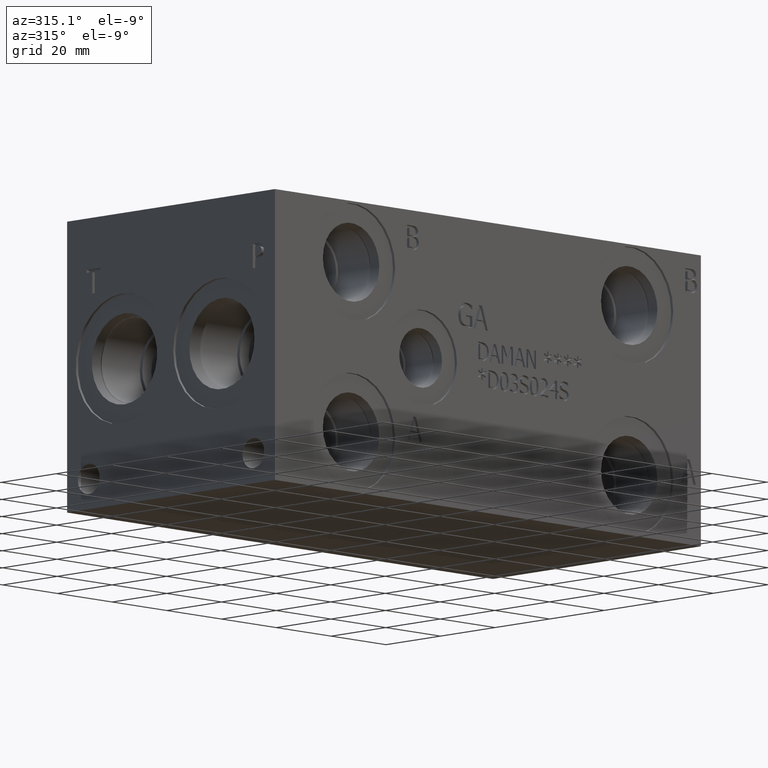
[diagram: clean part render]
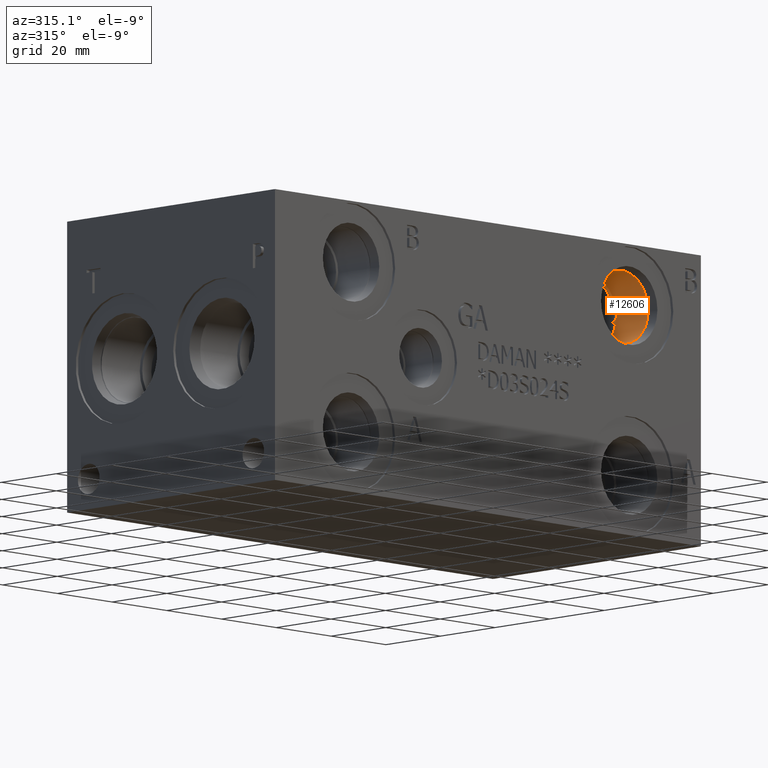
[diagram: same view with one face highlighted and labeled with its STEP entity id]
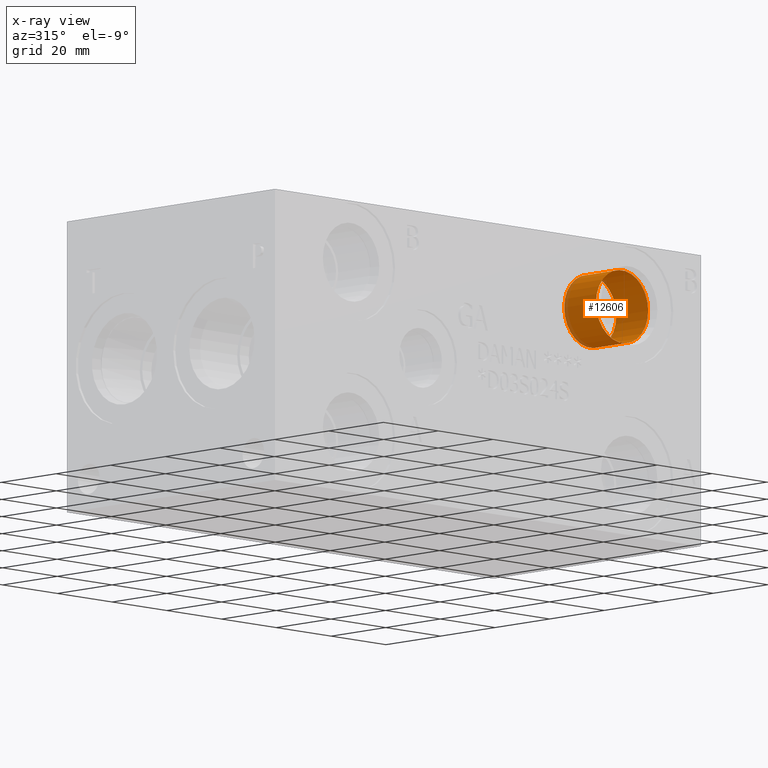
[diagram: x-ray of the same camera — body ghosted, the highlighted face saturated]
A machine part, auxiliary view. The second image highlights one B-rep face of the part: STEP entity #12606.
The next image is the same camera in x-ray: the body ghosted, the highlighted face saturated — about 6% of this face is hidden behind the body in this view.
In plain terms, the highlighted cylindrical surface (bore or boss wall) has radius 9.525 mm, axis along (0, -1, 0).
Its self-contained STEP definition (entity closure, byte-faithful):
#52=CYLINDRICAL_SURFACE('',#13289,9.525);
#313=CIRCLE('',#13266,9.525);
#325=CIRCLE('',#13286,9.525);
#326=CIRCLE('',#13287,9.525);
#1601=FACE_OUTER_BOUND('',#2329,.T.);
#2329=EDGE_LOOP('',(#10723,#10724,#10725,#10726,#10727));
#3525=LINE('',#21518,#4665);
#4665=VECTOR('',#15724,9.525);
#5795=VERTEX_POINT('',#21468);
#5810=VERTEX_POINT('',#21511);
#5811=VERTEX_POINT('',#21512);
#7482=EDGE_CURVE('',#5795,#5795,#313,.T.);
#7501=EDGE_CURVE('',#5810,#5811,#325,.T.);
#7502=EDGE_CURVE('',#5811,#5810,#326,.T.);
#7504=EDGE_CURVE('',#5795,#5811,#3525,.T.);
#10723=ORIENTED_EDGE('',*,*,#7482,.T.);
#10724=ORIENTED_EDGE('',*,*,#7504,.T.);
#10725=ORIENTED_EDGE('',*,*,#7501,.F.);
#10726=ORIENTED_EDGE('',*,*,#7502,.F.);
#10727=ORIENTED_EDGE('',*,*,#7504,.F.);
#12606=ADVANCED_FACE('',(#1601),#52,.F.);
#13266=AXIS2_PLACEMENT_3D('',#21470,#15669,#15670);
#13286=AXIS2_PLACEMENT_3D('',#21513,#15716,#15717);
#13287=AXIS2_PLACEMENT_3D('',#21514,#15718,#15719);
#13289=AXIS2_PLACEMENT_3D('',#21517,#15722,#15723);
#15669=DIRECTION('center_axis',(0.,-1.,0.));
#15670=DIRECTION('ref_axis',(1.,0.,0.));
#15716=DIRECTION('center_axis',(0.,-1.,0.));
#15717=DIRECTION('ref_axis',(1.,0.,0.));
#15718=DIRECTION('center_axis',(0.,-1.,0.));
#15719=DIRECTION('ref_axis',(1.,0.,0.));
#15722=DIRECTION('center_axis',(0.,-1.,0.));
#15723=DIRECTION('ref_axis',(1.,0.,0.));
#15724=DIRECTION('',(0.,1.,0.));
#21468=CARTESIAN_POINT('',(120.65,3.4036,60.325));
#21470=CARTESIAN_POINT('Origin',(130.175,3.4036,60.325));
#21511=CARTESIAN_POINT('',(139.7,15.0622,60.325));
#21512=CARTESIAN_POINT('',(120.65,15.0622,60.325));
#21513=CARTESIAN_POINT('Origin',(130.175,15.0622,60.325));
#21514=CARTESIAN_POINT('Origin',(130.175,15.0622,60.325));
#21517=CARTESIAN_POINT('Origin',(130.175,7.5311,60.325));
#21518=CARTESIAN_POINT('',(120.65,7.5311,60.325));